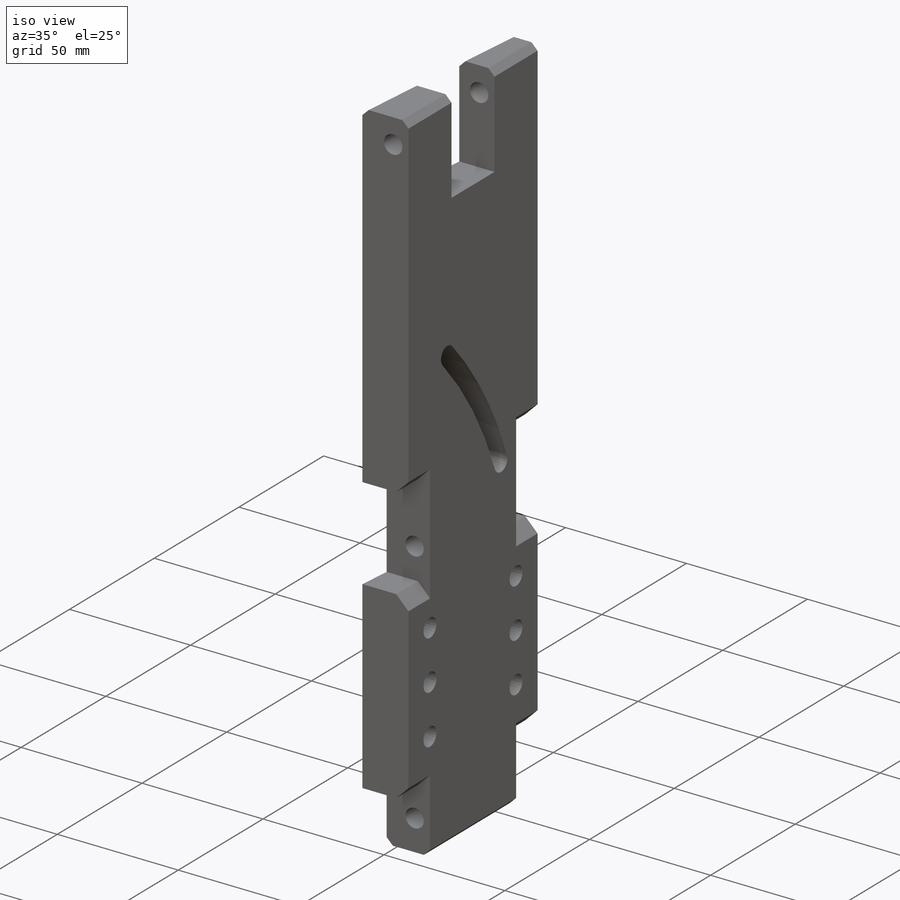
[diagram: iso view]
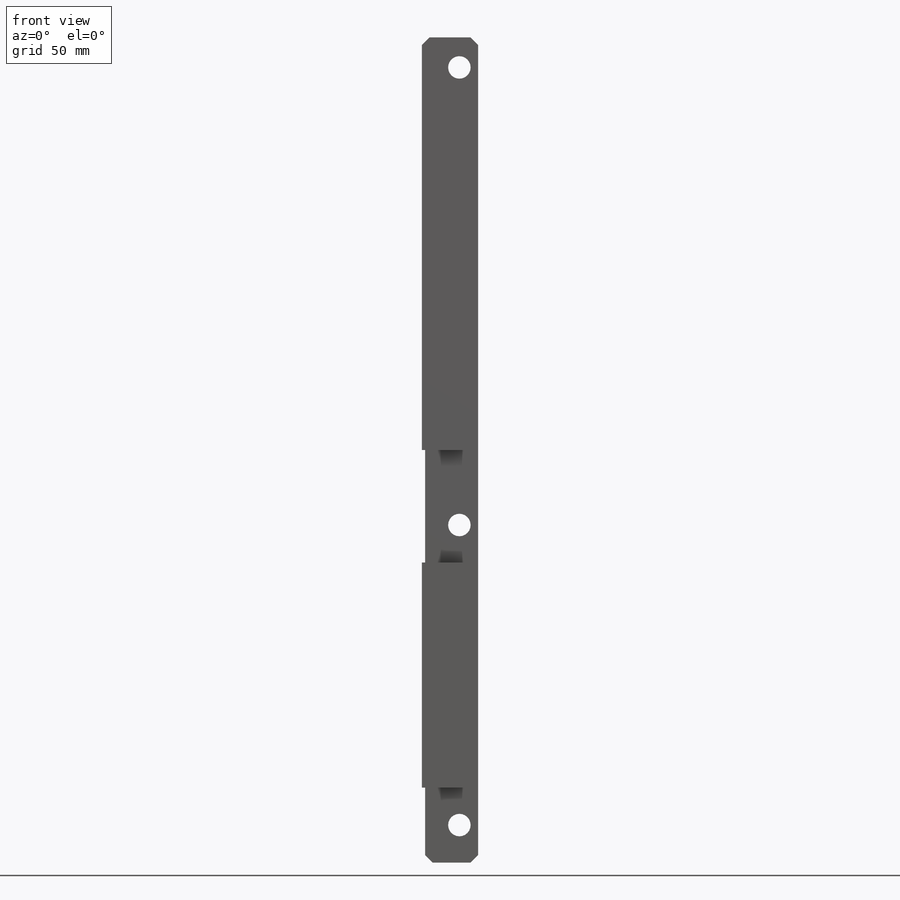
[diagram: front view]
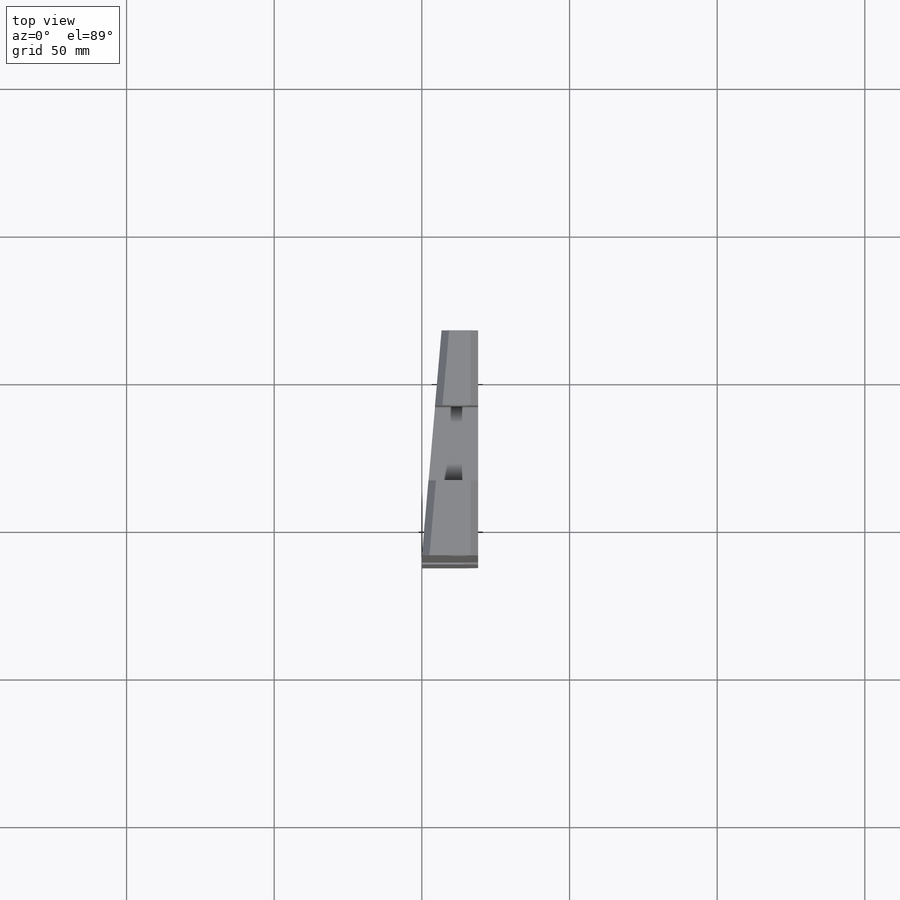
[diagram: top view]
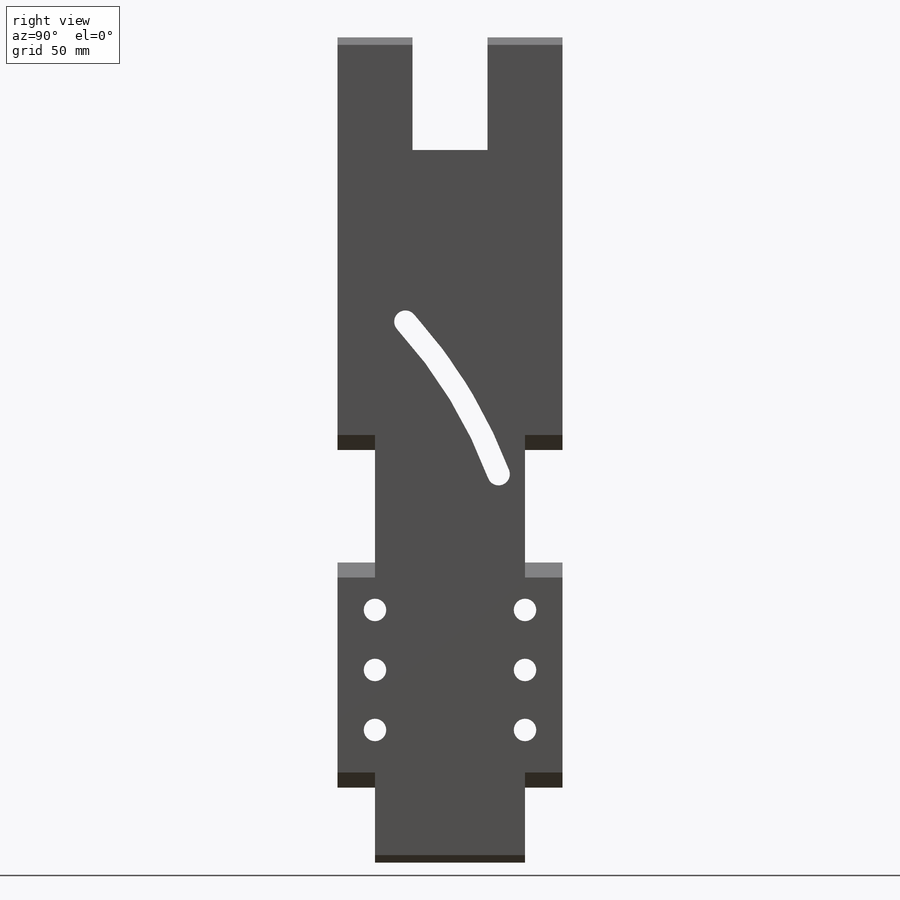
[diagram: right view]
SOLIDWORKS PART (.sldprt)
format: sldprt  version: not decoded by parser v0  size: 309,760 bytes
history: native  units: mm
features: sketch x8, cut_extrude x7, chamfer x2, material x1, extrude x1, pattern_linear x1 (+11 scaffold rows collapsed)
feature tree (31):
  scaffold x11  (default folders/planes/origin — collapsed)
  material  "Material <not specified>"
  sketch  "Sketch1"  dims[c1.D1=76.2mm c1.D2=12.7mm c1.D3=12.7mm c1.D4=279.4mm c1.D5=25.4mm c1.D6=101.6mm c2.D3=50.8mm c2.D7=38.1mm]
  extrude  "Boss-Extrude1"  Depth=19.05mm
  sketch  "Sketch2"  dims[D1=12.7mm D2=6.35mm]
  cut_extrude  "Cut-Extrude1"  [1 undecoded]
  sketch  "Sketch3"  dims[D1=6.35mm]
  cut_extrude  "Cut-Extrude2"  [1 undecoded]
  sketch  "Sketch4"  dims[c1.D1=~5.056794mm c1.D5=3.81mm c2.D1=5.08mm c2.D3=93.98mm c2.D4=~78.557864mm c3.D4=90.0deg c4.D4=76.2mm c4.D2=2.0]
  cut_extrude  "Cut-Extrude3"  [1 undecoded]
  sketch  "Sketch6"  dims[D1=~4.945788mm]
  cut_extrude  "Cut-Extrude4"  [1 undecoded]
  pattern_linear  "LPattern1"  Count1=3 Count2=1 Spacing1=20.32mm Spacing2=2.54mm
  sketch  "Sketch7"  dims[D1=25.4mm D2=38.1mm]
  cut_extrude  "Cut-Extrude5"  [1 undecoded]
  sketch  "Sketch8"  dims[c1.D1=76.2mm c2.D1=5.0deg c3.D1=76.2mm c4.D1=5.0deg c5.D1=76.2mm c6.D1=5.0deg]
  cut_extrude  "Cut-Extrude6"  [1 undecoded]
  sketch  "Sketch9"  dims[D1=6.35mm D2=10.16mm]
  cut_extrude  "Cut-Extrude7"  Depth=152.4mm
  chamfer  "Chamfer1"  Distance=2.54mm Angle=45deg
  chamfer  "Chamfer2"  Distance=5.08mm Angle=45deg
decode coverage: 13 of 19 modeling features carry decoded parameters
note: ~ marks probable driven/reference dimensions
note: 6 parameter values undecoded
summary: no parameter record found for 6 features
note: suppression state not decoded; provenance and decode notes live in map.json
